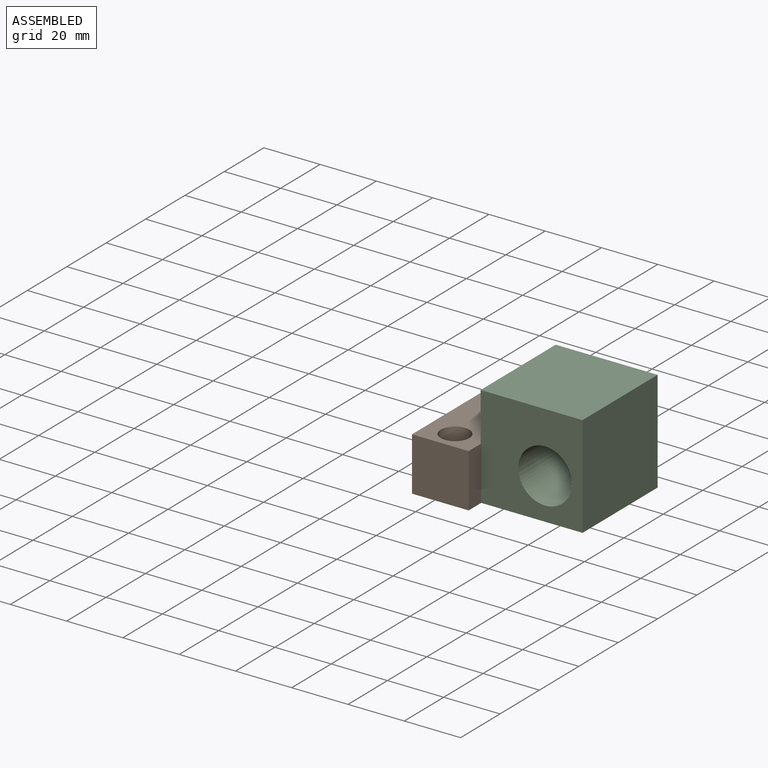
[diagram: assembled view]
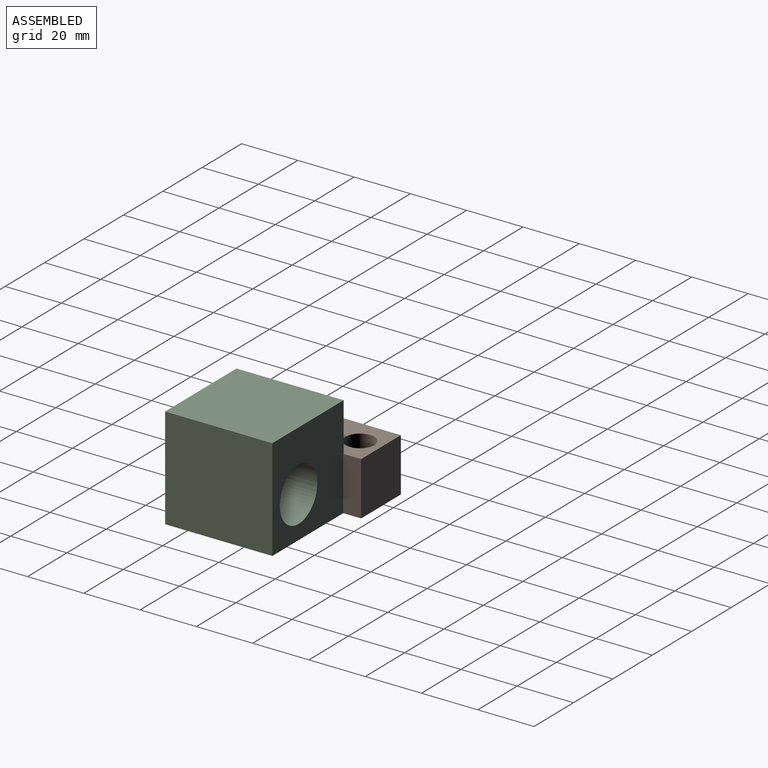
[diagram: assembled view, second angle]
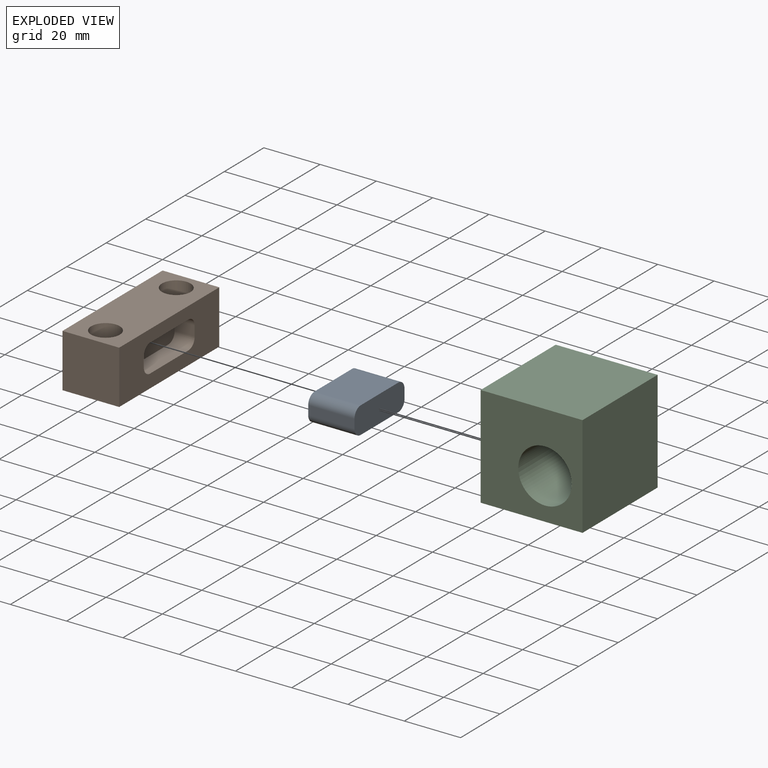
[diagram: exploded view]
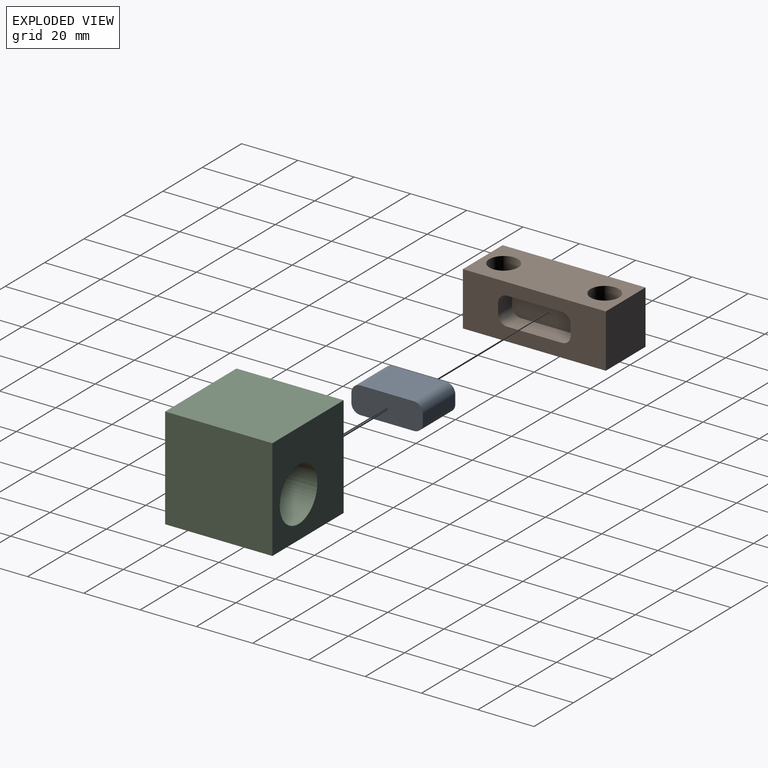
[diagram: exploded view, second angle]
ASSEMBLY  parts=3 mates=2
PART A: 10 faces, bbox 25.4x16.4x9.5 mm
  f0: cylinder r=3.17mm len=16.45mm, axis (0,-1,0), area 82mm2, adj f1,f2,f3,f4
  f1: plane 25.4x9.53mm, normal (0,-1,0), area 233.3mm2, adj f0,f2,f4,f5,f6,f7,f8,f9
  f2: plane 19.05x16.45mm, normal (0,0,1), area 313.3mm2, adj f0,f1,f3,f5
  f3: plane 25.4x9.53mm, normal (0,1,0), area 233.3mm2, adj f0,f2,f4,f5,f6,f7,f8,f9
  f4: plane 16.45x3.18mm, normal (-1,0,0), area 52.2mm2, adj f0,f1,f3,f6
  f5: cylinder r=3.17mm len=16.45mm, axis (0,-1,0), area 82mm2, adj f1,f2,f3,f9
  f6: cylinder r=3.17mm len=16.45mm, axis (0,-1,0), area 82mm2, adj f1,f3,f4,f7
  f7: plane 19.05x16.45mm, normal (0,0,-1), area 313.3mm2, adj f1,f3,f6,f8
  f8: cylinder r=3.17mm len=16.45mm, axis (0,-1,0), area 82mm2, adj f1,f3,f7,f9
  f9: plane 16.45x3.18mm, normal (1,0,0), area 52.2mm2, adj f1,f3,f5,f8
PART B: 25 faces, bbox 20.2x19.1x50.8 mm
  f0: cylinder r=3.17mm len=7.12mm, axis (-1,0,0), area 35.5mm2, adj f1,f2,f3,f4
  f1: plane 7.12x3.58mm, normal (0,0,1), area 25.5mm2, adj f0,f2,f4,f5
  f2: plane 25.8x9.93mm, normal (1,0,0), area 247.4mm2, adj f0,f1,f3,f5,f6,f7,f8,f9
  f3: plane 19.45x7.12mm, normal (0,1,0), area 138.5mm2, adj f0,f2,f4,f9
  f4: plane 50.8x19.05mm, normal (1,0,0), area 720.3mm2, adj f0,f1,f3,f5,f6,f7,f8,f9
  f5: cylinder r=3.17mm len=7.12mm, axis (-1,0,0), area 35.5mm2, adj f1,f2,f4,f6
  f6: plane 19.45x7.12mm, normal (0,-1,0), area 138.5mm2, adj f2,f4,f5,f7
  f7: cylinder r=3.17mm len=7.12mm, axis (-1,0,0), area 35.5mm2, adj f2,f4,f6,f8
  f8: plane 7.12x3.58mm, normal (0,0,-1), area 25.5mm2, adj f2,f4,f7,f9
  f9: cylinder r=3.17mm len=7.12mm, axis (-1,0,0), area 35.5mm2, adj f2,f3,f4,f8
  f10: plane 50.8x20.16mm, normal (0,-1,0), area 862mm2, adj f4,f11,f13,f14,f15,f16,f17,f18
  f11: plane 20.16x19.05mm, normal (0,0,-1), area 384mm2, adj f4,f10,f12,f14
  f12: plane 50.8x20.16mm, normal (0,1,0), area 983.2mm2, adj f4,f11,f13,f14,f19,f20,f21,f22
  f13: plane 20.16x19.05mm, normal (0,0,1), area 384mm2, adj f4,f10,f12,f14
  f14: plane 50.8x19.05mm, normal (-1,0,0), area 967.7mm2, adj f10,f11,f12,f13
  f15: cylinder r=5.08mm len=11.11mm, axis (0,1,0), area 177.3mm2, adj f10,f16,f23
  f16: cylinder r=5.08mm len=11.11mm, axis (0,1,0), area 177.3mm2, adj f10,f15,f23
  f17: cylinder r=5.08mm len=11.11mm, axis (0,1,0), area 177.3mm2, adj f10,f18,f24
  f18: cylinder r=5.08mm len=11.11mm, axis (0,1,0), area 177.3mm2, adj f10,f17,f24
  f19: cylinder r=2.55mm len=7.94mm, axis (0,1,0), area 63.7mm2, adj f12,f20,f24
  f20: cylinder r=2.55mm len=7.94mm, axis (0,1,0), area 63.7mm2, adj f12,f19,f24
  f21: cylinder r=2.55mm len=7.94mm, axis (0,1,0), area 63.7mm2, adj f12,f22,f23
  f22: cylinder r=2.55mm len=7.94mm, axis (0,1,0), area 63.7mm2, adj f12,f21,f23
  f23: plane 10.18x10.16mm, normal (0,-1,0), area 60.6mm2, adj f15,f16,f21,f22
  f24: plane 10.18x10.16mm, normal (0,-1,0), area 60.6mm2, adj f17,f18,f19,f20
PART C: 17 faces, bbox 36.2x38.1x36.2 mm
  f0: plane 9.53x3.18mm, normal (0,1,0), area 30.2mm2, adj f1,f2,f3,f4
  f1: plane 38.1x36.21mm, normal (-1,0,0), area 1131.7mm2, adj f0,f2,f4,f5,f6,f7,f8,f9
  f2: cylinder r=3.17mm len=9.53mm, axis (1,0,0), area 55.7mm2, adj f0,f1,f3,f11
  f3: plane 25.87x9.98mm, normal (-1,0,0), area 247.7mm2, adj f0,f2,f4,f9,f10,f11,f12,f13
  f4: cylinder r=3.17mm len=9.53mm, axis (1,0,0), area 49.5mm2, adj f0,f1,f3,f12
  f5: plane 36.21x36.21mm, normal (0,-1,0), area 1027.4mm2, adj f1,f6,f8,f14,f15,f16
  f6: plane 38.1x36.21mm, normal (0,0,1), area 1379.4mm2, adj f1,f5,f7,f14
  f7: plane 36.21x36.21mm, normal (0,1,0), area 1027.4mm2, adj f1,f6,f8,f14,f15,f16
  f8: plane 38.1x36.21mm, normal (0,0,-1), area 1379.4mm2, adj f1,f5,f7,f14
  f9: plane 9.53x3.18mm, normal (0,-1,0), area 30.2mm2, adj f1,f3,f10,f13
  f10: cylinder r=3.17mm len=9.53mm, axis (1,0,0), area 51.6mm2, adj f1,f3,f9,f11
  f11: plane 19.05x9.53mm, normal (0,0,-1), area 181.5mm2, adj f1,f2,f3,f10
  f12: plane 19.05x9.53mm, normal (0,0,1), area 181.5mm2, adj f1,f3,f4,f13
  f13: cylinder r=3.17mm len=9.53mm, axis (1,0,0), area 49.5mm2, adj f1,f3,f9,f12
  f14: plane 38.1x36.21mm, normal (1,0,0), area 1379.4mm2, adj f5,f6,f7,f8
  f15: cylinder r=9.5mm len=38.1mm, axis (0,-1,0), area 1137.1mm2, adj f5,f7,f16
  f16: cylinder r=9.5mm len=38.1mm, axis (0,-1,0), area 1137.1mm2, adj f5,f7,f15
PLACE A rot(axis=(0,0,1),90deg) t=(6.59,0.04,-12.81)mm
PLACE B rot(axis=(-1,0,0),90deg) t=(-6.45,-12.66,-17.77)mm
PLACE C t=(13.51,31.8,-17.78)mm
MATE pin_slot B.f2 <-> A.f3  axis (1,0,0) through (6.59,12.74,-8.05)mm
MATE pin_slot C.f3 <-> A.f1  axis (-1,0,0) through (23.04,12.74,-8.05)mm
